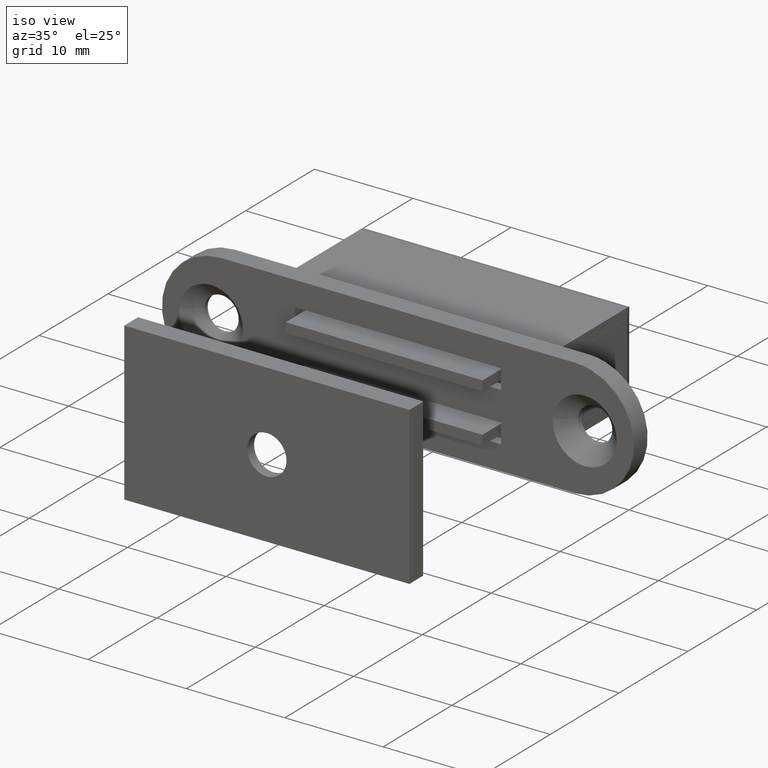
[diagram: clean part render]
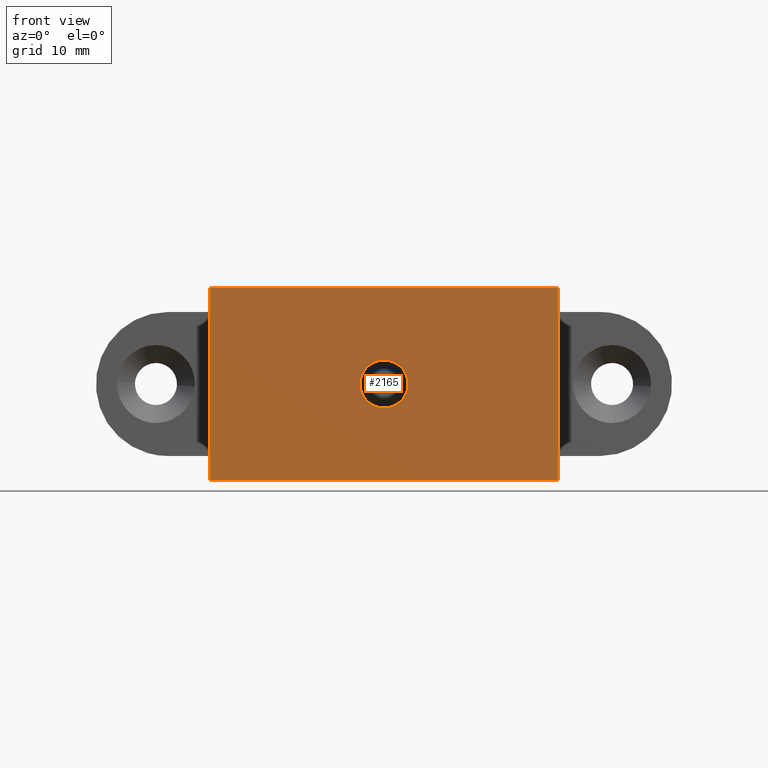
[diagram: tour spotlight — one face highlighted and labeled with its STEP entity id]
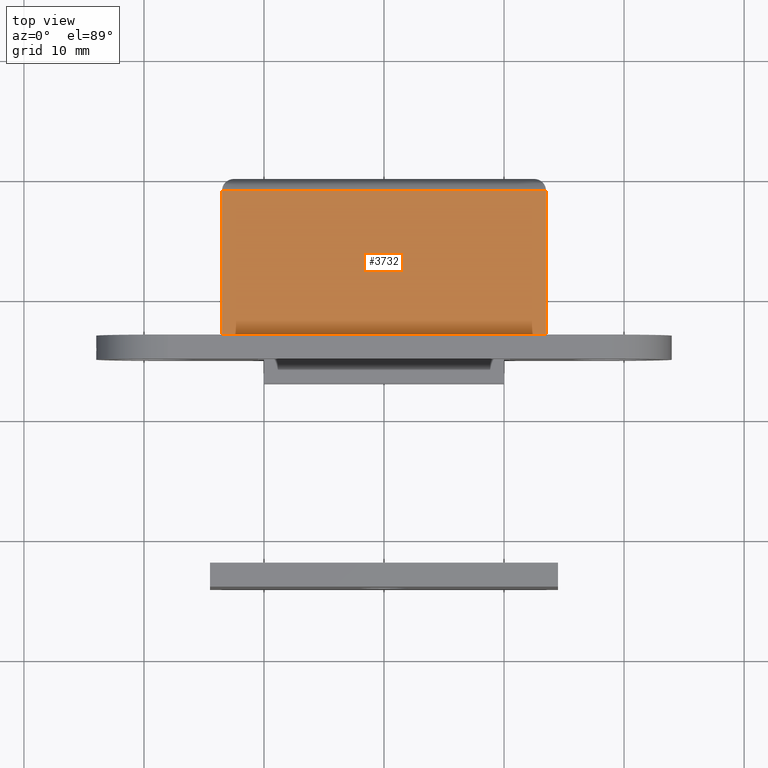
[diagram: tour spotlight — one face highlighted and labeled with its STEP entity id]
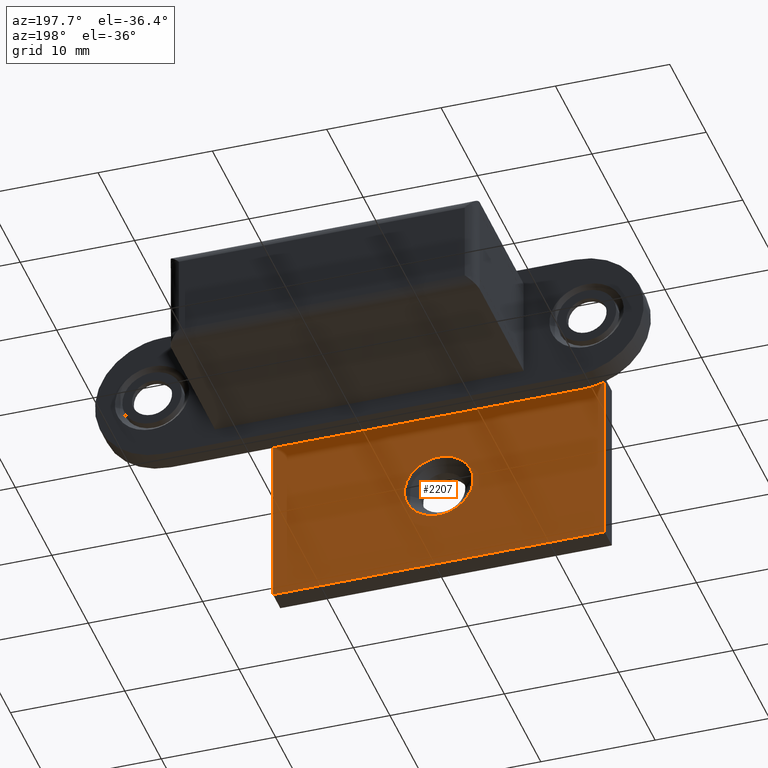
[diagram: tour spotlight — one face highlighted and labeled with its STEP entity id]
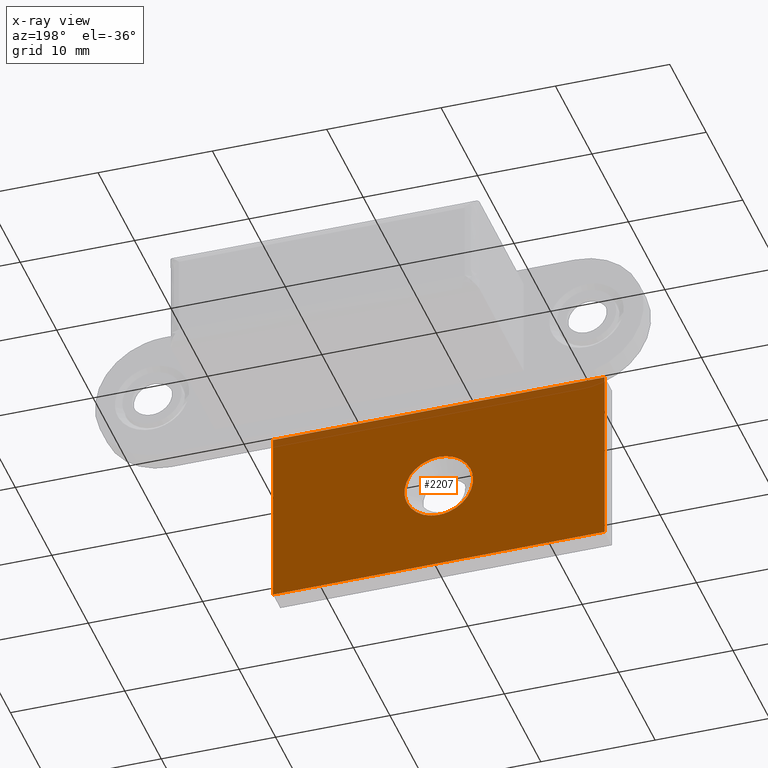
[diagram: x-ray of the same camera — body ghosted, this tour face saturated]
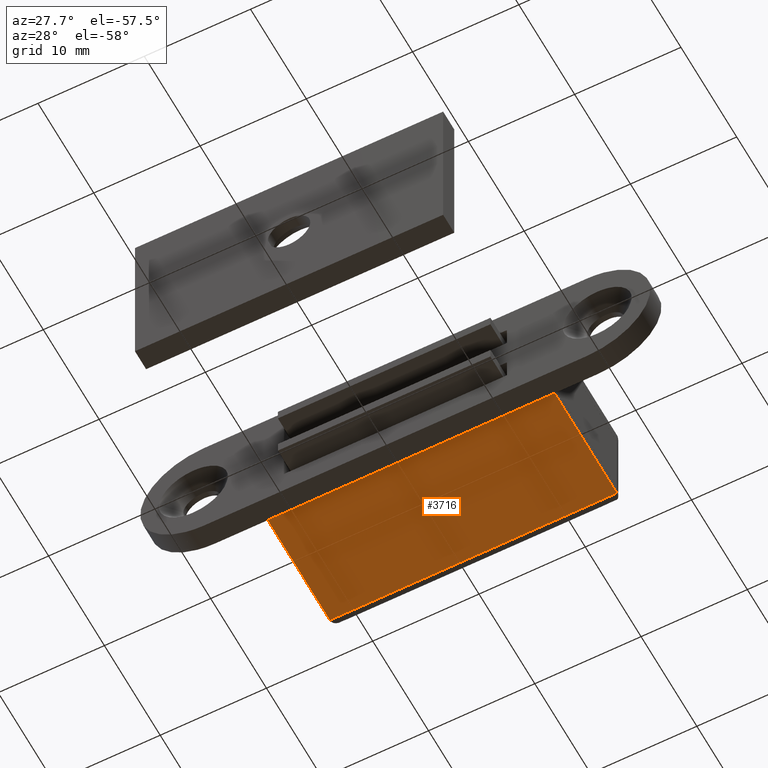
[diagram: tour spotlight — one face highlighted and labeled with its STEP entity id]
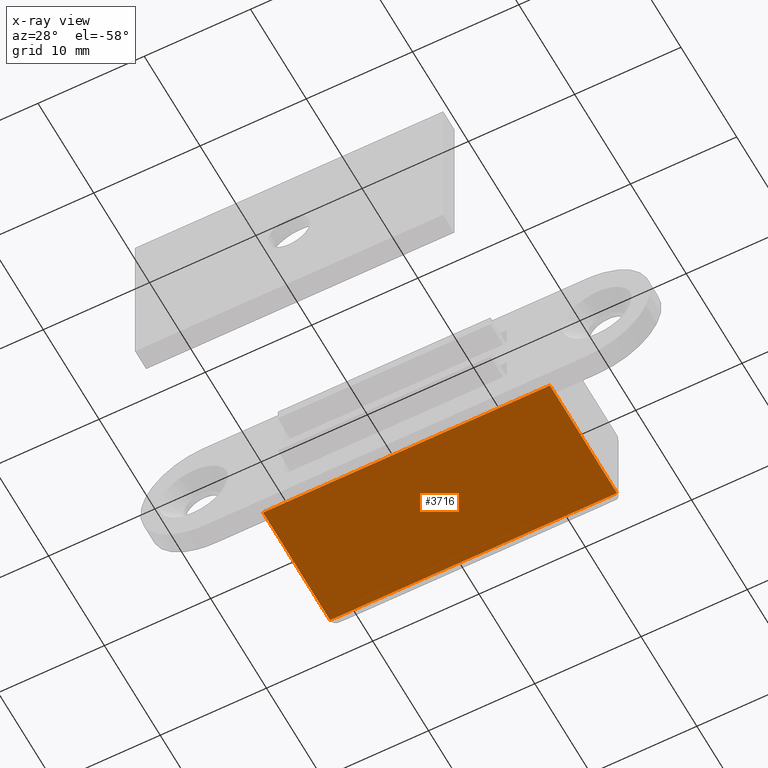
[diagram: x-ray of the same camera — body ghosted, this tour face saturated]
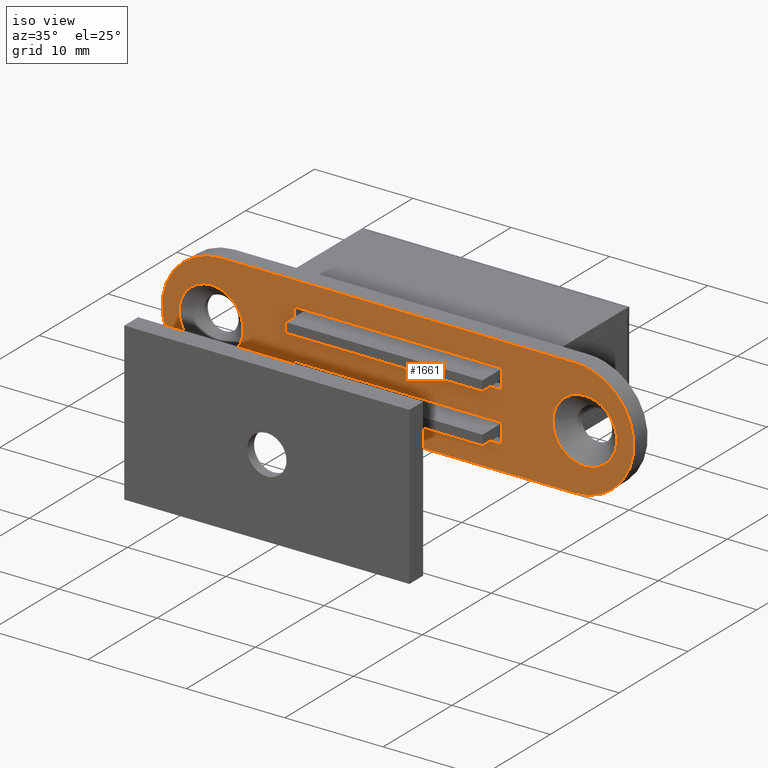
[diagram: tour spotlight — one face highlighted and labeled with its STEP entity id]
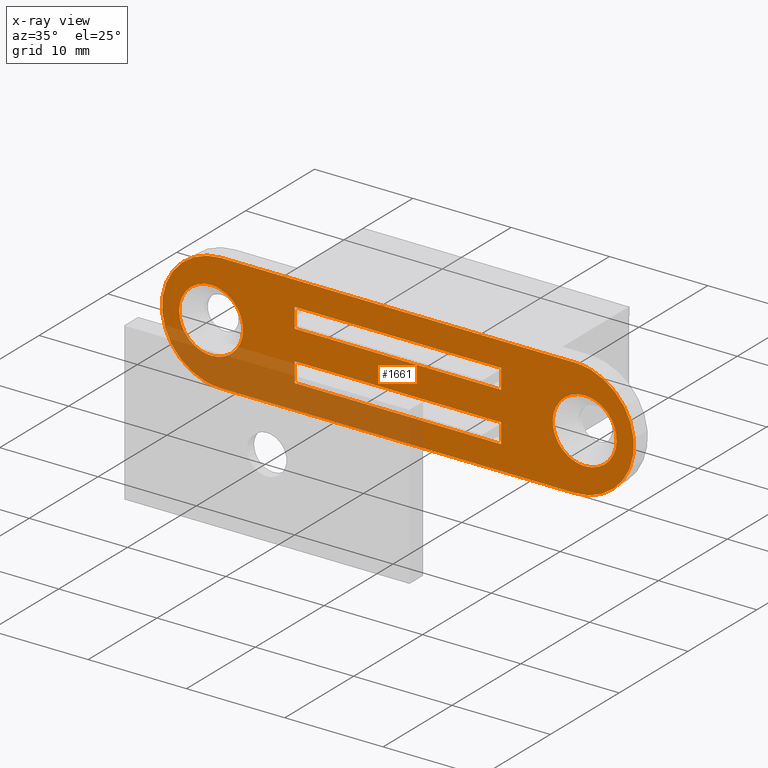
[diagram: x-ray of the same camera — body ghosted, this tour face saturated]
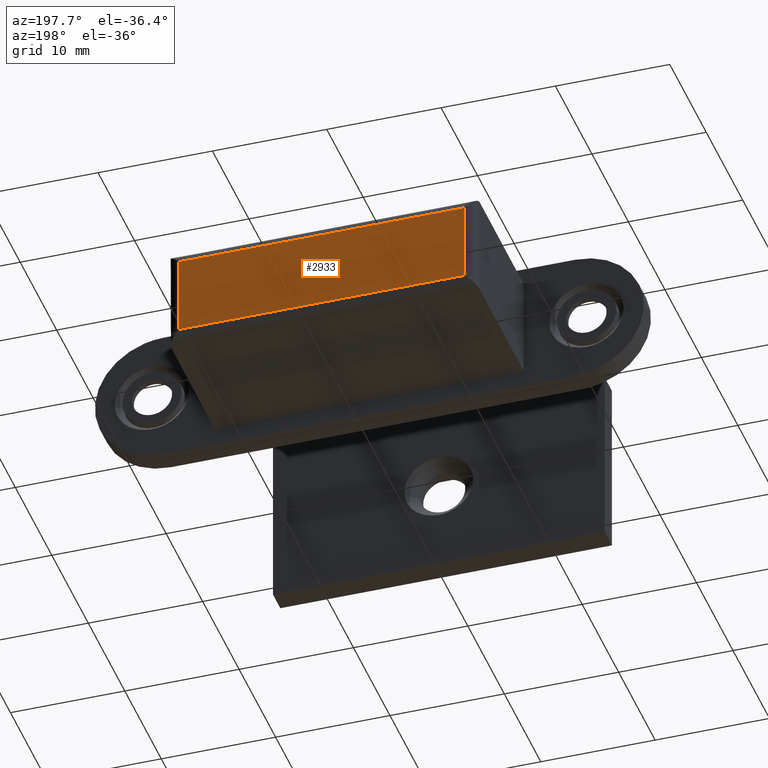
[diagram: tour spotlight — one face highlighted and labeled with its STEP entity id]
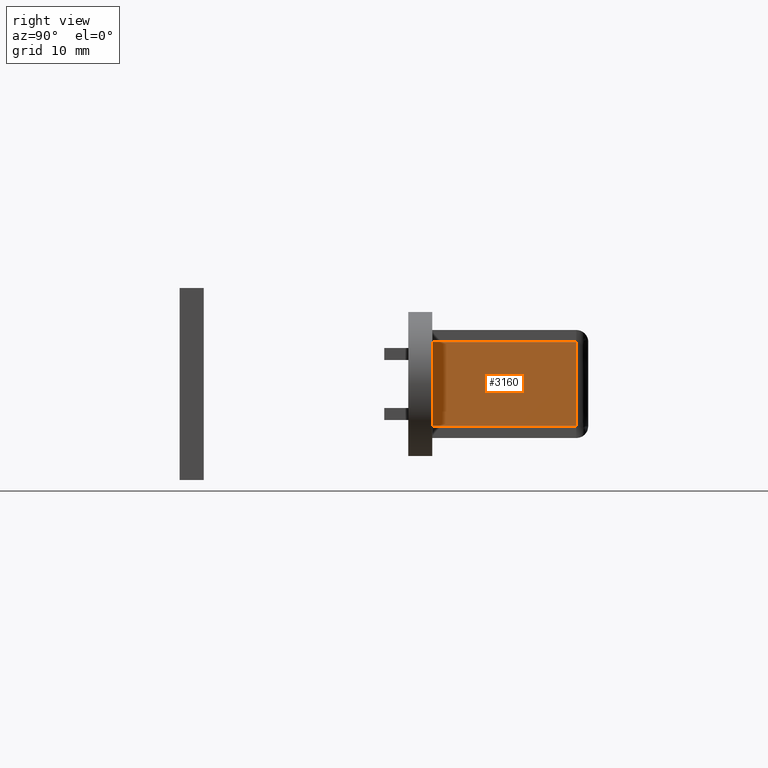
[diagram: tour spotlight — one face highlighted and labeled with its STEP entity id]
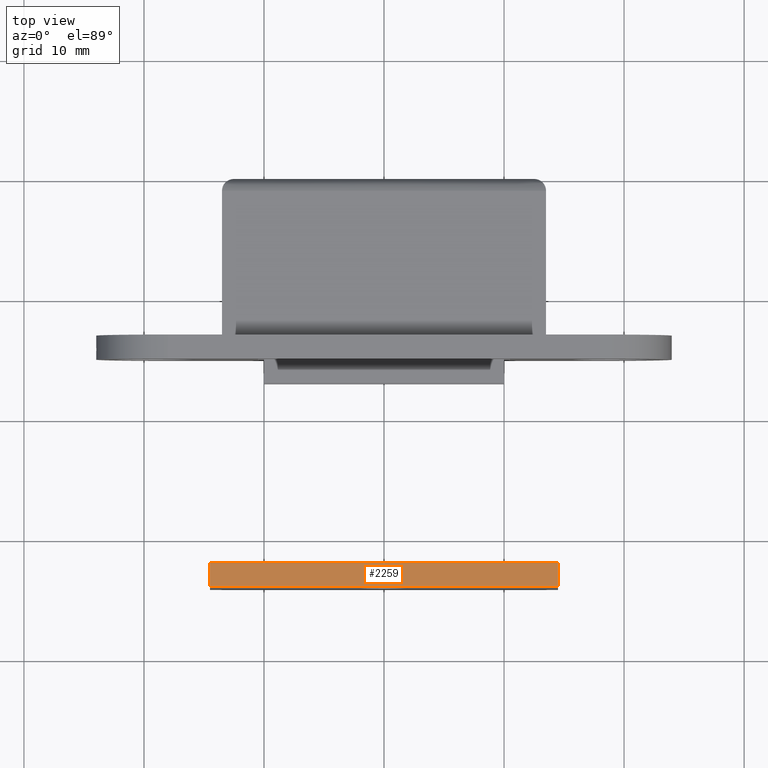
[diagram: tour spotlight — one face highlighted and labeled with its STEP entity id]
A machine part: a face-by-face anatomy tour. The part has 96 B-rep faces; the first image is the clean iso view, then the 8 largest visible faces are spotlighted one at a time (largest first), each with its STEP entity span.

Face 1 — front view, entity #2165. In plain terms, the highlighted face is a freeform B-spline surface patch.
Definition (entity closure, byte-faithful):
#2019=CARTESIAN_POINT('',(1.996269596839024,-34.044645065486712,-0.122097079147318));
#2020=VERTEX_POINT('',#2019);
#2026=CARTESIAN_POINT('',(0.0,-34.044645065486698,2.000000000000016));
#2027=VERTEX_POINT('',#2026);
#2028=CARTESIAN_POINT('',(1.996269596839024,-34.044645065486698,-0.122097079147318));
#2029=CARTESIAN_POINT('',(2.000000000000036,-34.044645065486698,-0.061105526636099));
#2030=CARTESIAN_POINT('',(2.000000000000035,-34.044645065486698,-1.967316E-014));
#2031=CARTESIAN_POINT('',(2.000000000000036,-34.044645065486705,2.000000000000016));
#2032=CARTESIAN_POINT('',(0.0,-34.044645065486698,2.000000000000016));
#2040=(BOUNDED_CURVE()B_SPLINE_CURVE(2,(#2028,#2029,#2030,#2031,#2032),.UNSPECIFIED.,.F.,.U.)B_SPLINE_CURVE_WITH_KNOTS((3,2,3),(0.239332962235262,0.250000000000000,0.500000000000000),.UNSPECIFIED.)CURVE()GEOMETRIC_REPRESENTATION_ITEM()RATIONAL_B_SPLINE_CURVE((0.976072041658830,0.987502787895525,1.0,0.707106781186547,1.0))REPRESENTATION_ITEM(''));
#2041=EDGE_CURVE('',#2020,#2027,#2040,.T.);
#2043=CARTESIAN_POINT('',(-1.996269596839024,-34.044645065486712,0.122097079147279));
#2044=VERTEX_POINT('',#2043);
#2045=CARTESIAN_POINT('',(0.0,-34.044645065486698,2.000000000000016));
#2046=CARTESIAN_POINT('',(-1.881412133738167,-34.044645065486705,2.000000000000016));
#2047=CARTESIAN_POINT('',(-1.996269596839024,-34.044645065486705,0.122097079147279));
#2055=(BOUNDED_CURVE()B_SPLINE_CURVE(2,(#2045,#2046,#2047),.UNSPECIFIED.,.F.,.U.)B_SPLINE_CURVE_WITH_KNOTS((3,3),(0.500000000000000,0.739332962235262),.UNSPECIFIED.)CURVE()GEOMETRIC_REPRESENTATION_ITEM()RATIONAL_B_SPLINE_CURVE((1.0,0.719603993291022,0.976072041658830))REPRESENTATION_ITEM(''));
#2056=EDGE_CURVE('',#2027,#2044,#2055,.T.);
#2089=CARTESIAN_POINT('',(0.0,-34.044645065486698,-2.000000000000055));
#2090=VERTEX_POINT('',#2089);
#2091=CARTESIAN_POINT('',(-1.996269596839024,-34.044645065486705,0.122097079147279));
#2092=CARTESIAN_POINT('',(-2.000000000000036,-34.044645065486698,0.061105526636059));
#2093=CARTESIAN_POINT('',(-2.000000000000035,-34.044645065486698,-1.967316E-014));
#2094=CARTESIAN_POINT('',(-2.000000000000036,-34.044645065486705,-2.000000000000055));
#2095=CARTESIAN_POINT('',(0.0,-34.044645065486698,-2.000000000000055));
#2103=(BOUNDED_CURVE()B_SPLINE_CURVE(2,(#2091,#2092,#2093,#2094,#2095),.UNSPECIFIED.,.F.,.U.)B_SPLINE_CURVE_WITH_KNOTS((3,2,3),(0.739332962235262,0.750000000000000,1.0),.UNSPECIFIED.)CURVE()GEOMETRIC_REPRESENTATION_ITEM()RATIONAL_B_SPLINE_CURVE((0.976072041658830,0.987502787895525,1.0,0.707106781186547,1.0))REPRESENTATION_ITEM(''));
#2104=EDGE_CURVE('',#2044,#2090,#2103,.T.);
#2106=CARTESIAN_POINT('',(0.0,-34.044645065486698,-2.000000000000055));
#2107=CARTESIAN_POINT('',(1.881412133738168,-34.044645065486705,-2.000000000000054));
#2108=CARTESIAN_POINT('',(1.996269596839024,-34.044645065486698,-0.122097079147318));
#2116=(BOUNDED_CURVE()B_SPLINE_CURVE(2,(#2106,#2107,#2108),.UNSPECIFIED.,.F.,.U.)B_SPLINE_CURVE_WITH_KNOTS((3,3),(0.0,0.239332962235262),.UNSPECIFIED.)CURVE()GEOMETRIC_REPRESENTATION_ITEM()RATIONAL_B_SPLINE_CURVE((1.0,0.719603993291022,0.976072041658830))REPRESENTATION_ITEM(''));
#2117=EDGE_CURVE('',#2090,#2020,#2116,.T.);
#2124=CARTESIAN_POINT('',(-15.948549943792379,-34.044645065486648,8.799199968988896));
#2125=CARTESIAN_POINT('',(15.948550721632991,-34.044645065486648,8.799199968988896));
#2126=CARTESIAN_POINT('',(-15.948549943792379,-34.044645065486648,-8.799200398142338));
#2127=CARTESIAN_POINT('',(15.948550721632991,-34.044645065486648,-8.799200398142338));
#2128=B_SPLINE_SURFACE_WITH_KNOTS('',1,1,((#2124,#2126),(#2125,#2127)),.UNSPECIFIED.,.F.,.F.,.U.,(2,2),(2,2),(0.0,31.897100665425370),(0.0,17.598400367131230),.UNSPECIFIED.);
#2129=CARTESIAN_POINT('',(-14.500000000000000,-34.044645065486648,-8.0));
#2130=VERTEX_POINT('',#2129);
#2131=CARTESIAN_POINT('',(-14.500000000000000,-34.044645065486648,8.0));
#2132=VERTEX_POINT('',#2131);
#2133=CARTESIAN_POINT('',(-14.500000000000000,-34.044645065486648,-8.0));
#2134=CARTESIAN_POINT('',(-14.500000000000000,-34.044645065486648,8.0));
#2135=QUASI_UNIFORM_CURVE('',1,(#2133,#2134),.UNSPECIFIED.,.F.,.U.);
#2136=EDGE_CURVE('',#2130,#2132,#2135,.T.);
#2137=ORIENTED_EDGE('',*,*,#2136,.F.);
#2138=CARTESIAN_POINT('',(14.500000000000000,-34.044645065486648,-8.0));
#2139=VERTEX_POINT('',#2138);
#2140=CARTESIAN_POINT('',(14.500000000000000,-34.044645065486648,-8.0));
#2141=CARTESIAN_POINT('',(-14.500000000000000,-34.044645065486648,-8.0));
#2142=QUASI_UNIFORM_CURVE('',1,(#2140,#2141),.UNSPECIFIED.,.F.,.U.);
#2143=EDGE_CURVE('',#2139,#2130,#2142,.T.);
#2144=ORIENTED_EDGE('',*,*,#2143,.F.);
#2145=CARTESIAN_POINT('',(14.500000000000000,-34.044645065486648,8.0));
#2146=VERTEX_POINT('',#2145);
#2147=CARTESIAN_POINT('',(14.500000000000000,-34.044645065486648,8.0));
#2148=CARTESIAN_POINT('',(14.500000000000000,-34.044645065486648,-8.0));
#2149=QUASI_UNIFORM_CURVE('',1,(#2147,#2148),.UNSPECIFIED.,.F.,.U.);
#2150=EDGE_CURVE('',#2146,#2139,#2149,.T.);
#2151=ORIENTED_EDGE('',*,*,#2150,.F.);
#2152=CARTESIAN_POINT('',(-14.500000000000000,-34.044645065486648,8.0));
#2153=CARTESIAN_POINT('',(14.500000000000000,-34.044645065486648,8.0));
#2154=QUASI_UNIFORM_CURVE('',1,(#2152,#2153),.UNSPECIFIED.,.F.,.U.);
#2155=EDGE_CURVE('',#2132,#2146,#2154,.T.);
#2156=ORIENTED_EDGE('',*,*,#2155,.F.);
#2157=EDGE_LOOP('',(#2137,#2144,#2151,#2156));
#2158=FACE_OUTER_BOUND('',#2157,.T.);
#2159=ORIENTED_EDGE('',*,*,#2056,.F.);
#2160=ORIENTED_EDGE('',*,*,#2041,.F.);
#2161=ORIENTED_EDGE('',*,*,#2117,.F.);
#2162=ORIENTED_EDGE('',*,*,#2104,.F.);
#2163=EDGE_LOOP('',(#2159,#2160,#2161,#2162));
#2164=FACE_BOUND('',#2163,.T.);
#2165=ADVANCED_FACE('',(#2158,#2164),#2128,.F.);

Face 2 — top view, entity #3732. In plain terms, the highlighted face is a freeform B-spline surface patch.
Definition (entity closure, byte-faithful):
#3094=CARTESIAN_POINT('',(-13.500000000000000,-13.0,4.500000000000000));
#3095=VERTEX_POINT('',#3094);
#3096=CARTESIAN_POINT('',(-13.500000000000000,-1.0,4.500000000000000));
#3097=VERTEX_POINT('',#3096);
#3098=CARTESIAN_POINT('',(-13.500000000000000,-13.0,4.500000000000000));
#3099=CARTESIAN_POINT('',(-13.500000000000000,-1.0,4.500000000000000));
#3100=QUASI_UNIFORM_CURVE('',1,(#3098,#3099),.UNSPECIFIED.,.F.,.U.);
#3101=EDGE_CURVE('',#3095,#3097,#3100,.T.);
#3279=CARTESIAN_POINT('',(13.499995999999999,-1.0,4.500000000000000));
#3280=VERTEX_POINT('',#3279);
#3296=CARTESIAN_POINT('',(13.499995999999999,-1.0,4.500000000000000));
#3297=CARTESIAN_POINT('',(-13.500000000000000,-1.0,4.500000000000000));
#3298=QUASI_UNIFORM_CURVE('',1,(#3296,#3297),.UNSPECIFIED.,.F.,.U.);
#3299=EDGE_CURVE('',#3280,#3097,#3298,.T.);
#3680=CARTESIAN_POINT('',(13.499995999999960,-13.0,4.500000000000000));
#3681=VERTEX_POINT('',#3680);
#3682=CARTESIAN_POINT('',(13.499995999999960,-13.0,4.500000000000000));
#3683=CARTESIAN_POINT('',(13.499995999999999,-1.0,4.500000000000000));
#3684=QUASI_UNIFORM_CURVE('',1,(#3682,#3683),.UNSPECIFIED.,.F.,.U.);
#3685=EDGE_CURVE('',#3681,#3280,#3684,.T.);
#3717=CARTESIAN_POINT('',(-14.848649747868770,-0.400600023258329,4.500000000000000));
#3718=CARTESIAN_POINT('',(-14.848649747868770,-13.599400298606760,4.500000000000000));
#3719=CARTESIAN_POINT('',(14.848646472065100,-0.400600023258329,4.500000000000000));
#3720=CARTESIAN_POINT('',(14.848646472065100,-13.599400298606760,4.500000000000000));
#3721=B_SPLINE_SURFACE_WITH_KNOTS('',1,1,((#3717,#3719),(#3718,#3720)),.UNSPECIFIED.,.F.,.F.,.U.,(2,2),(2,2),(0.0,13.198800275348431),(0.0,29.697296219933872),.UNSPECIFIED.);
#3722=ORIENTED_EDGE('',*,*,#3685,.T.);
#3723=ORIENTED_EDGE('',*,*,#3299,.T.);
#3724=ORIENTED_EDGE('',*,*,#3101,.F.);
#3725=CARTESIAN_POINT('',(13.499995999999960,-13.0,4.500000000000000));
#3726=CARTESIAN_POINT('',(-13.500000000000000,-13.0,4.500000000000000));
#3727=QUASI_UNIFORM_CURVE('',1,(#3725,#3726),.UNSPECIFIED.,.F.,.U.);
#3728=EDGE_CURVE('',#3681,#3095,#3727,.T.);
#3729=ORIENTED_EDGE('',*,*,#3728,.F.);
#3730=EDGE_LOOP('',(#3722,#3723,#3724,#3729));
#3731=FACE_OUTER_BOUND('',#3730,.T.);
#3732=ADVANCED_FACE('',(#3731),#3721,.T.);

Face 3 — auxiliary view, entity #2207. An x-ray twin of the same camera follows (body ghosted, this face saturated) — the face is partly hidden behind the body. In plain terms, the highlighted face is a freeform B-spline surface patch.
Definition (entity closure, byte-faithful):
#1823=CARTESIAN_POINT('',(2.990752001200863,-32.044645065483017,-0.235377287212060));
#1824=VERTEX_POINT('',#1823);
#1830=CARTESIAN_POINT('',(0.0,-32.044645065486698,-3.000000000000055));
#1831=VERTEX_POINT('',#1830);
#1832=CARTESIAN_POINT('',(0.0,-32.044645065486698,-3.000000000000055));
#1833=CARTESIAN_POINT('',(2.773171474950244,-32.044645065484858,-3.000000000000197));
#1834=CARTESIAN_POINT('',(2.990752001200863,-32.044645065483024,-0.235377287212060));
#1842=(BOUNDED_CURVE()B_SPLINE_CURVE(2,(#1832,#1833,#1834),.UNSPECIFIED.,.F.,.U.)B_SPLINE_CURVE_WITH_KNOTS((3,3),(0.0,0.236331300631150),.UNSPECIFIED.)CURVE()GEOMETRIC_REPRESENTATION_ITEM()RATIONAL_B_SPLINE_CURVE((1.0,0.723120658607091,0.969723356168440))REPRESENTATION_ITEM(''));
#1843=EDGE_CURVE('',#1831,#1824,#1842,.T.);
#1845=CARTESIAN_POINT('',(-2.990752001200863,-32.044645065483017,0.235377287212021));
#1846=VERTEX_POINT('',#1845);
#1847=CARTESIAN_POINT('',(-2.990752001200863,-32.044645065483024,0.235377287212021));
#1848=CARTESIAN_POINT('',(-3.000000000003633,-32.044645065483088,0.117870321037447));
#1849=CARTESIAN_POINT('',(-3.000000000003561,-32.044645065483166,2.583660E-013));
#1850=CARTESIAN_POINT('',(-3.000000000001729,-32.044645065485000,-2.999999999999920));
#1851=CARTESIAN_POINT('',(0.0,-32.044645065486698,-3.000000000000055));
#1859=(BOUNDED_CURVE()B_SPLINE_CURVE(2,(#1847,#1848,#1849,#1850,#1851),.UNSPECIFIED.,.F.,.U.)B_SPLINE_CURVE_WITH_KNOTS((3,2,3),(0.736331300631150,0.750000000000000,1.0),.UNSPECIFIED.)CURVE()GEOMETRIC_REPRESENTATION_ITEM()RATIONAL_B_SPLINE_CURVE((0.969723356168441,0.983986122579456,1.0,0.707106781186547,1.0))REPRESENTATION_ITEM(''));
#1860=EDGE_CURVE('',#1846,#1831,#1859,.T.);
#1966=CARTESIAN_POINT('',(0.0,-32.044645065486698,3.000000000000016));
#1967=VERTEX_POINT('',#1966);
#1968=CARTESIAN_POINT('',(0.0,-32.044645065486698,3.000000000000016));
#1969=CARTESIAN_POINT('',(-2.773171474950244,-32.044645065484858,3.000000000000159));
#1970=CARTESIAN_POINT('',(-2.990752001200863,-32.044645065483024,0.235377287212021));
#1978=(BOUNDED_CURVE()B_SPLINE_CURVE(2,(#1968,#1969,#1970),.UNSPECIFIED.,.F.,.U.)B_SPLINE_CURVE_WITH_KNOTS((3,3),(0.500000000000000,0.736331300631150),.UNSPECIFIED.)CURVE()GEOMETRIC_REPRESENTATION_ITEM()RATIONAL_B_SPLINE_CURVE((1.0,0.723120658607091,0.969723356168441))REPRESENTATION_ITEM(''));
#1979=EDGE_CURVE('',#1967,#1846,#1978,.T.);
#1981=CARTESIAN_POINT('',(2.990752001200863,-32.044645065483024,-0.235377287212060));
#1982=CARTESIAN_POINT('',(3.000000000003633,-32.044645065483095,-0.117870321037486));
#1983=CARTESIAN_POINT('',(3.000000000003561,-32.044645065483166,-2.968043E-013));
#1984=CARTESIAN_POINT('',(3.000000000001729,-32.044645065485000,2.999999999999882));
#1985=CARTESIAN_POINT('',(0.0,-32.044645065486698,3.000000000000016));
#1993=(BOUNDED_CURVE()B_SPLINE_CURVE(2,(#1981,#1982,#1983,#1984,#1985),.UNSPECIFIED.,.F.,.U.)B_SPLINE_CURVE_WITH_KNOTS((3,2,3),(0.236331300631150,0.250000000000000,0.500000000000000),.UNSPECIFIED.)CURVE()GEOMETRIC_REPRESENTATION_ITEM()RATIONAL_B_SPLINE_CURVE((0.969723356168440,0.983986122579456,1.0,0.707106781186547,1.0))REPRESENTATION_ITEM(''));
#1994=EDGE_CURVE('',#1824,#1967,#1993,.T.);
#2166=CARTESIAN_POINT('',(-15.948549943792379,-32.044645065486698,8.799199968988896));
#2167=CARTESIAN_POINT('',(15.948550721632991,-32.044645065486698,8.799199968988896));
#2168=CARTESIAN_POINT('',(-15.948549943792379,-32.044645065486698,-8.799200398142338));
#2169=CARTESIAN_POINT('',(15.948550721632991,-32.044645065486698,-8.799200398142338));
#2170=B_SPLINE_SURFACE_WITH_KNOTS('',1,1,((#2166,#2168),(#2167,#2169)),.UNSPECIFIED.,.F.,.F.,.U.,(2,2),(2,2),(0.0,31.897100665425370),(0.0,17.598400367131230),.UNSPECIFIED.);
#2171=CARTESIAN_POINT('',(-14.500000000000000,-32.044645065486648,-8.0));
#2172=VERTEX_POINT('',#2171);
#2173=CARTESIAN_POINT('',(-14.500000000000000,-32.044645065486648,8.0));
#2174=VERTEX_POINT('',#2173);
#2175=CARTESIAN_POINT('',(-14.500000000000000,-32.044645065486648,-8.0));
#2176=CARTESIAN_POINT('',(-14.500000000000000,-32.044645065486648,8.0));
#2177=QUASI_UNIFORM_CURVE('',1,(#2175,#2176),.UNSPECIFIED.,.F.,.U.);
#2178=EDGE_CURVE('',#2172,#2174,#2177,.T.);
#2179=ORIENTED_EDGE('',*,*,#2178,.T.);
#2180=CARTESIAN_POINT('',(14.500000000000000,-32.044645065486648,8.0));
#2181=VERTEX_POINT('',#2180);
#2182=CARTESIAN_POINT('',(-14.500000000000000,-32.044645065486648,8.0));
#2183=CARTESIAN_POINT('',(14.500000000000000,-32.044645065486648,8.0));
#2184=QUASI_UNIFORM_CURVE('',1,(#2182,#2183),.UNSPECIFIED.,.F.,.U.);
#2185=EDGE_CURVE('',#2174,#2181,#2184,.T.);
#2186=ORIENTED_EDGE('',*,*,#2185,.T.);
#2187=CARTESIAN_POINT('',(14.500000000000000,-32.044645065486648,-8.0));
#2188=VERTEX_POINT('',#2187);
#2189=CARTESIAN_POINT('',(14.500000000000000,-32.044645065486648,8.0));
#2190=CARTESIAN_POINT('',(14.500000000000000,-32.044645065486648,-8.0));
#2191=QUASI_UNIFORM_CURVE('',1,(#2189,#2190),.UNSPECIFIED.,.F.,.U.);
#2192=EDGE_CURVE('',#2181,#2188,#2191,.T.);
#2193=ORIENTED_EDGE('',*,*,#2192,.T.);
#2194=CARTESIAN_POINT('',(14.500000000000000,-32.044645065486648,-8.0));
#2195=CARTESIAN_POINT('',(-14.500000000000000,-32.044645065486648,-8.0));
#2196=QUASI_UNIFORM_CURVE('',1,(#2194,#2195),.UNSPECIFIED.,.F.,.U.);
#2197=EDGE_CURVE('',#2188,#2172,#2196,.T.);
#2198=ORIENTED_EDGE('',*,*,#2197,.T.);
#2199=EDGE_LOOP('',(#2179,#2186,#2193,#2198));
#2200=FACE_OUTER_BOUND('',#2199,.T.);
#2201=ORIENTED_EDGE('',*,*,#1979,.T.);
#2202=ORIENTED_EDGE('',*,*,#1860,.T.);
#2203=ORIENTED_EDGE('',*,*,#1843,.T.);
#2204=ORIENTED_EDGE('',*,*,#1994,.T.);
#2205=EDGE_LOOP('',(#2201,#2202,#2203,#2204));
#2206=FACE_BOUND('',#2205,.T.);
#2207=ADVANCED_FACE('',(#2200,#2206),#2170,.T.);

Face 4 — auxiliary view, entity #3716. An x-ray twin of the same camera follows (body ghosted, this face saturated) — the face is partly hidden behind the body. In plain terms, the highlighted face is a freeform B-spline surface patch.
Definition (entity closure, byte-faithful):
#3189=CARTESIAN_POINT('',(-13.500000000000000,-1.0,-4.500000000000000));
#3190=VERTEX_POINT('',#3189);
#3240=CARTESIAN_POINT('',(13.499995999999999,-1.0,-4.500000000000000));
#3241=VERTEX_POINT('',#3240);
#3255=CARTESIAN_POINT('',(-13.500000000000000,-1.0,-4.500000000000000));
#3256=CARTESIAN_POINT('',(13.499995999999999,-1.0,-4.500000000000000));
#3257=QUASI_UNIFORM_CURVE('',1,(#3255,#3256),.UNSPECIFIED.,.F.,.U.);
#3258=EDGE_CURVE('',#3190,#3241,#3257,.T.);
#3658=CARTESIAN_POINT('',(-13.500000000000000,-13.0,-4.500000000000000));
#3659=VERTEX_POINT('',#3658);
#3660=CARTESIAN_POINT('',(-13.500000000000000,-1.0,-4.500000000000000));
#3661=CARTESIAN_POINT('',(-13.500000000000000,-13.0,-4.500000000000000));
#3662=QUASI_UNIFORM_CURVE('',1,(#3660,#3661),.UNSPECIFIED.,.F.,.U.);
#3663=EDGE_CURVE('',#3190,#3659,#3662,.T.);
#3695=CARTESIAN_POINT('',(-14.848649747868770,-13.599399976741671,-4.500000000000000));
#3696=CARTESIAN_POINT('',(-14.848649747868770,-0.400599701393247,-4.500000000000000));
#3697=CARTESIAN_POINT('',(14.848646472065100,-13.599399976741671,-4.500000000000000));
#3698=CARTESIAN_POINT('',(14.848646472065100,-0.400599701393247,-4.500000000000000));
#3699=B_SPLINE_SURFACE_WITH_KNOTS('',1,1,((#3695,#3697),(#3696,#3698)),.UNSPECIFIED.,.F.,.F.,.U.,(2,2),(2,2),(0.0,13.198800275348431),(0.0,29.697296219933872),.UNSPECIFIED.);
#3700=ORIENTED_EDGE('',*,*,#3663,.F.);
#3701=ORIENTED_EDGE('',*,*,#3258,.T.);
#3702=CARTESIAN_POINT('',(13.499995999999960,-13.0,-4.500000000000000));
#3703=VERTEX_POINT('',#3702);
#3704=CARTESIAN_POINT('',(13.499995999999999,-1.0,-4.500000000000000));
#3705=CARTESIAN_POINT('',(13.499995999999960,-13.0,-4.500000000000000));
#3706=QUASI_UNIFORM_CURVE('',1,(#3704,#3705),.UNSPECIFIED.,.F.,.U.);
#3707=EDGE_CURVE('',#3241,#3703,#3706,.T.);
#3708=ORIENTED_EDGE('',*,*,#3707,.T.);
#3709=CARTESIAN_POINT('',(13.499995999999960,-13.0,-4.500000000000000));
#3710=CARTESIAN_POINT('',(-13.500000000000000,-13.0,-4.500000000000000));
#3711=QUASI_UNIFORM_CURVE('',1,(#3709,#3710),.UNSPECIFIED.,.F.,.U.);
#3712=EDGE_CURVE('',#3703,#3659,#3711,.T.);
#3713=ORIENTED_EDGE('',*,*,#3712,.T.);
#3714=EDGE_LOOP('',(#3700,#3701,#3708,#3713));
#3715=FACE_OUTER_BOUND('',#3714,.T.);
#3716=ADVANCED_FACE('',(#3715),#3699,.T.);

Face 5 — iso view, entity #1661. An x-ray twin of the same camera follows (body ghosted, this face saturated) — the face is partly hidden behind the body. In plain terms, the highlighted face is a freeform B-spline surface patch.
Definition (entity closure, byte-faithful):
#680=CARTESIAN_POINT('',(-15.756061950678911,-14.999999940406580,-0.198407506137247));
#681=VERTEX_POINT('',#680);
#687=CARTESIAN_POINT('',(-18.999995999999999,-14.999999940395361,3.249995946884155));
#688=VERTEX_POINT('',#687);
#689=CARTESIAN_POINT('',(-15.756061950678911,-14.999999940406576,-0.198407506137246));
#690=CARTESIAN_POINT('',(-15.750000053104813,-14.999999940406417,-0.099296356929859));
#691=CARTESIAN_POINT('',(-15.750000053104980,-14.999999940406250,-6.647800E-013));
#692=CARTESIAN_POINT('',(-15.750000053110588,-14.999999940400638,3.249995946883833));
#693=CARTESIAN_POINT('',(-18.999995999999999,-14.999999940395361,3.249995946884155));
#701=(BOUNDED_CURVE()B_SPLINE_CURVE(2,(#689,#690,#691,#692,#693),.UNSPECIFIED.,.F.,.U.)B_SPLINE_CURVE_WITH_KNOTS((3,2,3),(0.239332962237443,0.250000000000000,0.500000000000000),.UNSPECIFIED.)CURVE()GEOMETRIC_REPRESENTATION_ITEM()RATIONAL_B_SPLINE_CURVE((0.976072041663503,0.987502787898080,1.0,0.707106781186547,1.0))REPRESENTATION_ITEM(''));
#702=EDGE_CURVE('',#681,#688,#701,.T.);
#704=CARTESIAN_POINT('',(-22.243930049321090,-14.999999940406580,0.198407506137246));
#705=VERTEX_POINT('',#704);
#706=CARTESIAN_POINT('',(-18.999995999999999,-14.999999940395361,3.249995946884155));
#707=CARTESIAN_POINT('',(-22.057286904578110,-14.999999940400965,3.249995946884496));
#708=CARTESIAN_POINT('',(-22.243930049321097,-14.999999940406580,0.198407506137246));
#716=(BOUNDED_CURVE()B_SPLINE_CURVE(2,(#706,#707,#708),.UNSPECIFIED.,.F.,.U.)B_SPLINE_CURVE_WITH_KNOTS((3,3),(0.500000000000000,0.739332962237443),.UNSPECIFIED.)CURVE()GEOMETRIC_REPRESENTATION_ITEM()RATIONAL_B_SPLINE_CURVE((1.0,0.719603993288468,0.976072041663503))REPRESENTATION_ITEM(''));
#717=EDGE_CURVE('',#688,#705,#716,.T.);
#749=CARTESIAN_POINT('',(-18.999995999999999,-14.999999940395361,-3.249995946884155));
#750=VERTEX_POINT('',#749);
#751=CARTESIAN_POINT('',(-22.243930049321097,-14.999999940406580,0.198407506137246));
#752=CARTESIAN_POINT('',(-22.249991946895193,-14.999999940406418,0.099296356929858));
#753=CARTESIAN_POINT('',(-22.249991946895019,-14.999999940406241,6.637027E-013));
#754=CARTESIAN_POINT('',(-22.249991946889420,-14.999999940400638,-3.249995946883833));
#755=CARTESIAN_POINT('',(-18.999995999999999,-14.999999940395361,-3.249995946884155));
#763=(BOUNDED_CURVE()B_SPLINE_CURVE(2,(#751,#752,#753,#754,#755),.UNSPECIFIED.,.F.,.U.)B_SPLINE_CURVE_WITH_KNOTS((3,2,3),(0.739332962237443,0.750000000000000,1.0),.UNSPECIFIED.)CURVE()GEOMETRIC_REPRESENTATION_ITEM()RATIONAL_B_SPLINE_CURVE((0.976072041663503,0.987502787898080,1.0,0.707106781186547,1.0))REPRESENTATION_ITEM(''));
#764=EDGE_CURVE('',#705,#750,#763,.T.);
#766=CARTESIAN_POINT('',(-18.999995999999999,-14.999999940395361,-3.249995946884155));
#767=CARTESIAN_POINT('',(-15.942705095421891,-14.999999940400967,-3.249995946884497));
#768=CARTESIAN_POINT('',(-15.756061950678911,-14.999999940406576,-0.198407506137246));
#776=(BOUNDED_CURVE()B_SPLINE_CURVE(2,(#766,#767,#768),.UNSPECIFIED.,.F.,.U.)B_SPLINE_CURVE_WITH_KNOTS((3,3),(0.0,0.239332962237443),.UNSPECIFIED.)CURVE()GEOMETRIC_REPRESENTATION_ITEM()RATIONAL_B_SPLINE_CURVE((1.0,0.719603993288467,0.976072041663503))REPRESENTATION_ITEM(''));
#777=EDGE_CURVE('',#750,#681,#776,.T.);
#1046=CARTESIAN_POINT('',(22.243934049321091,-14.999999940406580,-0.198407506137247));
#1047=VERTEX_POINT('',#1046);
#1053=CARTESIAN_POINT('',(19.0,-14.999999940395361,3.249995946884155));
#1054=VERTEX_POINT('',#1053);
#1055=CARTESIAN_POINT('',(22.243934049321094,-14.999999940406576,-0.198407506137246));
#1056=CARTESIAN_POINT('',(22.249995946895190,-14.999999940406417,-0.099296356929859));
#1057=CARTESIAN_POINT('',(22.249995946895019,-14.999999940406250,-6.647800E-013));
#1058=CARTESIAN_POINT('',(22.249995946889428,-14.999999940400638,3.249995946883833));
#1059=CARTESIAN_POINT('',(19.0,-14.999999940395361,3.249995946884155));
#1067=(BOUNDED_CURVE()B_SPLINE_CURVE(2,(#1055,#1056,#1057,#1058,#1059),.UNSPECIFIED.,.F.,.U.)B_SPLINE_CURVE_WITH_KNOTS((3,2,3),(0.239332962237443,0.250000000000000,0.500000000000000),.UNSPECIFIED.)CURVE()GEOMETRIC_REPRESENTATION_ITEM()RATIONAL_B_SPLINE_CURVE((0.976072041663503,0.987502787898080,1.0,0.707106781186547,1.0))REPRESENTATION_ITEM(''));
#1068=EDGE_CURVE('',#1047,#1054,#1067,.T.);
#1070=CARTESIAN_POINT('',(15.756065950678909,-14.999999940406580,0.198407506137246));
#1071=VERTEX_POINT('',#1070);
#1072=CARTESIAN_POINT('',(19.0,-14.999999940395361,3.249995946884155));
#1073=CARTESIAN_POINT('',(15.942709095421897,-14.999999940400965,3.249995946884496));
#1074=CARTESIAN_POINT('',(15.756065950678908,-14.999999940406580,0.198407506137246));
#1082=(BOUNDED_CURVE()B_SPLINE_CURVE(2,(#1072,#1073,#1074),.UNSPECIFIED.,.F.,.U.)B_SPLINE_CURVE_WITH_KNOTS((3,3),(0.500000000000000,0.739332962237443),.UNSPECIFIED.)CURVE()GEOMETRIC_REPRESENTATION_ITEM()RATIONAL_B_SPLINE_CURVE((1.0,0.719603993288468,0.976072041663503))REPRESENTATION_ITEM(''));
#1083=EDGE_CURVE('',#1054,#1071,#1082,.T.);
#1115=CARTESIAN_POINT('',(19.0,-14.999999940395361,-3.249995946884155));
#1116=VERTEX_POINT('',#1115);
#1117=CARTESIAN_POINT('',(15.756065950678908,-14.999999940406580,0.198407506137246));
#1118=CARTESIAN_POINT('',(15.750004053104812,-14.999999940406418,0.099296356929858));
#1119=CARTESIAN_POINT('',(15.750004053104981,-14.999999940406241,6.637027E-013));
#1120=CARTESIAN_POINT('',(15.750004053110583,-14.999999940400638,-3.249995946883833));
#1121=CARTESIAN_POINT('',(19.0,-14.999999940395361,-3.249995946884155));
#1129=(BOUNDED_CURVE()B_SPLINE_CURVE(2,(#1117,#1118,#1119,#1120,#1121),.UNSPECIFIED.,.F.,.U.)B_SPLINE_CURVE_WITH_KNOTS((3,2,3),(0.739332962237443,0.750000000000000,1.0),.UNSPECIFIED.)CURVE()GEOMETRIC_REPRESENTATION_ITEM()RATIONAL_B_SPLINE_CURVE((0.976072041663503,0.987502787898080,1.0,0.707106781186547,1.0))REPRESENTATION_ITEM(''));
#1130=EDGE_CURVE('',#1071,#1116,#1129,.T.);
#1132=CARTESIAN_POINT('',(19.0,-14.999999940395361,-3.249995946884155));
#1133=CARTESIAN_POINT('',(22.057290904578107,-14.999999940400967,-3.249995946884497));
#1134=CARTESIAN_POINT('',(22.243934049321094,-14.999999940406576,-0.198407506137246));
#1142=(BOUNDED_CURVE()B_SPLINE_CURVE(2,(#1132,#1133,#1134),.UNSPECIFIED.,.F.,.U.)B_SPLINE_CURVE_WITH_KNOTS((3,3),(0.0,0.239332962237443),.UNSPECIFIED.)CURVE()GEOMETRIC_REPRESENTATION_ITEM()RATIONAL_B_SPLINE_CURVE((1.0,0.719603993288467,0.976072041663503))REPRESENTATION_ITEM(''));
#1143=EDGE_CURVE('',#1116,#1047,#1142,.T.);
#1276=CARTESIAN_POINT('',(-17.999999895280251,-15.0,-6.0));
#1277=VERTEX_POINT('',#1276);
#1278=CARTESIAN_POINT('',(17.999995999999999,-15.0,-6.0));
#1279=VERTEX_POINT('',#1278);
#1280=CARTESIAN_POINT('',(-17.999999895280251,-15.0,-6.0));
#1281=CARTESIAN_POINT('',(17.999995999999999,-15.0,-6.0));
#1282=QUASI_UNIFORM_CURVE('',1,(#1280,#1281),.UNSPECIFIED.,.F.,.U.);
#1283=EDGE_CURVE('',#1277,#1279,#1282,.T.);
#1312=CARTESIAN_POINT('',(10.500000000000000,-15.0,-3.500000000000000));
#1313=VERTEX_POINT('',#1312);
#1314=CARTESIAN_POINT('',(10.500000000000000,-15.0,-1.500000000000000));
#1315=VERTEX_POINT('',#1314);
#1316=CARTESIAN_POINT('',(10.500000000000000,-15.0,-3.500000000000000));
#1317=CARTESIAN_POINT('',(10.500000000000000,-15.0,-1.500000000000000));
#1318=QUASI_UNIFORM_CURVE('',1,(#1316,#1317),.UNSPECIFIED.,.F.,.U.);
#1319=EDGE_CURVE('',#1313,#1315,#1318,.T.);
#1361=CARTESIAN_POINT('',(-18.009797955705899,-15.0,5.999992000000000));
#1362=VERTEX_POINT('',#1361);
#1363=CARTESIAN_POINT('',(-18.009797955705899,-15.0,5.999992000000000));
#1364=CARTESIAN_POINT('',(-18.561764341377089,-15.000000000000011,5.999291271001738));
#1365=CARTESIAN_POINT('',(-19.370966573214421,-15.0,5.885242552994780));
#1366=CARTESIAN_POINT('',(-20.505735973787459,-15.000000000000030,5.481259887666925));
#1367=CARTESIAN_POINT('',(-21.282546321017779,-14.999999999999959,5.052324263097212));
#1368=CARTESIAN_POINT('',(-22.097294866082269,-15.000000000000041,4.418807632492299));
#1369=CARTESIAN_POINT('',(-22.795157165960500,-15.000000000000171,3.670440382303105));
#1370=CARTESIAN_POINT('',(-23.359224791444099,-14.999999999999609,2.758920045993010));
#1371=CARTESIAN_POINT('',(-23.722609305343600,-15.000000000000391,1.871333428092403));
#1372=CARTESIAN_POINT('',(-23.939943926530731,-14.999999999999600,1.000226585856818));
#1373=CARTESIAN_POINT('',(-24.016118850703350,-14.999999999999950,0.167006514544075));
#1374=CARTESIAN_POINT('',(-23.981718105394052,-15.000000000000160,-0.618422167165278));
#1375=CARTESIAN_POINT('',(-23.858193433413540,-14.999999999999700,-1.382671189871380));
#1376=CARTESIAN_POINT('',(-23.626838981578850,-15.000000000000091,-2.135212225389955));
#1377=CARTESIAN_POINT('',(-23.234912928771092,-14.999999999999970,-2.982746577242684));
#1378=CARTESIAN_POINT('',(-22.686730748885289,-15.000000000000030,-3.802281108610509));
#1379=CARTESIAN_POINT('',(-21.858204743178621,-14.999999999999909,-4.645519490290024));
#1380=CARTESIAN_POINT('',(-20.920189566069439,-15.000000000000270,-5.284437098531712));
#1381=CARTESIAN_POINT('',(-19.980919908134840,-14.999999999999551,-5.686755595943088));
#1382=CARTESIAN_POINT('',(-19.030265311766051,-15.000000000000940,-5.937179780356080));
#1383=CARTESIAN_POINT('',(-18.392490430645068,-14.999999999999050,-6.000054141068936));
#1384=CARTESIAN_POINT('',(-17.999999895280251,-15.0,-6.0));
#1385=B_SPLINE_CURVE_WITH_KNOTS('',3,(#1363,#1364,#1365,#1366,#1367,#1368,#1369,#1370,#1371,#1372,#1373,#1374,#1375,#1376,#1377,#1378,#1379,#1380,#1381,#1382,#1383,#1384),.UNSPECIFIED.,.F.,.U.,(4,1,1,1,1,1,1,1,1,1,1,1,1,1,1,1,1,1,1,4),(0.000000102349226,1.655815014275337,2.428557757982873,3.606044343681063,4.305186390572494,5.519475678261639,6.660175452374499,7.506493082220885,8.389602913539875,9.346321446829110,10.008623594256960,10.744556995793999,11.664460449689090,12.363610424740649,13.541094163749930,14.608195888768041,15.896074863565010,16.926391551970958,17.662327650135062,18.839787589607251),.UNSPECIFIED.);
#1386=EDGE_CURVE('',#1362,#1277,#1385,.T.);
#1429=CARTESIAN_POINT('',(18.009793955705899,-15.0,5.999992000000000));
#1430=VERTEX_POINT('',#1429);
#1431=CARTESIAN_POINT('',(18.009793955705899,-15.0,5.999992000000000));
#1432=CARTESIAN_POINT('',(-18.009797955705899,-15.0,5.999992000000000));
#1433=QUASI_UNIFORM_CURVE('',1,(#1431,#1432),.UNSPECIFIED.,.F.,.U.);
#1434=EDGE_CURVE('',#1430,#1362,#1433,.T.);
#1470=CARTESIAN_POINT('',(17.999995999999999,-15.0,-6.0));
#1471=CARTESIAN_POINT('',(18.331158682282190,-15.000000000000011,-6.000014240358727));
#1472=CARTESIAN_POINT('',(19.091623677619719,-14.999999999999920,-5.936925208282705));
#1473=CARTESIAN_POINT('',(20.041992235668289,-15.000000000000149,-5.670965191140366));
#1474=CARTESIAN_POINT('',(20.832759703809579,-14.999999999999829,-5.302997381559284));
#1475=CARTESIAN_POINT('',(21.515239814754299,-15.000000000000080,-4.888533853382110));
#1476=CARTESIAN_POINT('',(22.256084738064800,-15.000000000000259,-4.277217183423700));
#1477=CARTESIAN_POINT('',(22.944072594409761,-14.999999999999689,-3.455191869077793));
#1478=CARTESIAN_POINT('',(23.493533199793649,-15.000000000000080,-2.493385472955543));
#1479=CARTESIAN_POINT('',(23.836947858457510,-15.000000000000149,-1.516733885300389));
#1480=CARTESIAN_POINT('',(23.990924591499670,-14.999999999999540,-0.582124650855105));
#1481=CARTESIAN_POINT('',(24.012104475339189,-15.000000000001180,0.253215154506520));
#1482=CARTESIAN_POINT('',(23.916711183584191,-14.999999999999339,1.145731924935947));
#1483=CARTESIAN_POINT('',(23.648279633049491,-15.000000000000190,2.119445581952790));
#1484=CARTESIAN_POINT('',(23.182329962993371,-15.000000000000210,3.084154414574544));
#1485=CARTESIAN_POINT('',(22.649500744973668,-15.000000000000369,3.823074696190967));
#1486=CARTESIAN_POINT('',(22.021563651128510,-14.999999999999870,4.480173293841873));
#1487=CARTESIAN_POINT('',(21.334670365604850,-15.000000000000020,5.021072329582148));
#1488=CARTESIAN_POINT('',(20.450113297387979,-14.999999999999959,5.505955382702260));
#1489=CARTESIAN_POINT('',(19.358749678025859,-15.000000000000201,5.890751496588606));
#1490=CARTESIAN_POINT('',(18.512681898915350,-14.999999999999559,5.999299715809912));
#1491=CARTESIAN_POINT('',(18.009793955705899,-15.0,5.999992000000000));
#1492=B_SPLINE_CURVE_WITH_KNOTS('',3,(#1470,#1471,#1472,#1473,#1474,#1475,#1476,#1477,#1478,#1479,#1480,#1481,#1482,#1483,#1484,#1485,#1486,#1487,#1488,#1489,#1490,#1491),.UNSPECIFIED.,.F.,.U.,(4,1,1,1,1,1,1,1,1,1,1,1,1,1,1,1,1,1,1,4),(0.000000102261588,0.993494156851945,2.281373765471511,2.943705251361775,3.606044323560333,4.673151798009135,5.813847171621566,6.807359121419523,7.984846823184279,8.904761812479643,9.640639543127548,10.486966130734260,11.590868644334069,12.657978959328590,13.688280658021050,14.313824286125829,15.380930425689479,16.300848851290780,17.331156312904291,18.839787484887111),.UNSPECIFIED.);
#1493=EDGE_CURVE('',#1279,#1430,#1492,.T.);
#1531=CARTESIAN_POINT('',(-10.500000000000000,-15.0,-1.500000000000000));
#1532=VERTEX_POINT('',#1531);
#1533=CARTESIAN_POINT('',(10.500000000000000,-15.0,-1.500000000000000));
#1534=CARTESIAN_POINT('',(-10.500000000000000,-15.0,-1.500000000000000));
#1535=QUASI_UNIFORM_CURVE('',1,(#1533,#1534),.UNSPECIFIED.,.F.,.U.);
#1536=EDGE_CURVE('',#1315,#1532,#1535,.T.);
#1559=CARTESIAN_POINT('',(-10.500000000000000,-15.0,-3.500000000000000));
#1560=VERTEX_POINT('',#1559);
#1561=CARTESIAN_POINT('',(-10.500000000000000,-15.0,-1.500000000000000));
#1562=CARTESIAN_POINT('',(-10.500000000000000,-15.0,-3.500000000000000));
#1563=QUASI_UNIFORM_CURVE('',1,(#1561,#1562),.UNSPECIFIED.,.F.,.U.);
#1564=EDGE_CURVE('',#1532,#1560,#1563,.T.);
#1587=CARTESIAN_POINT('',(-10.500000000000000,-15.0,-3.500000000000000));
#1588=CARTESIAN_POINT('',(10.500000000000000,-15.0,-3.500000000000000));
#1589=QUASI_UNIFORM_CURVE('',1,(#1587,#1588),.UNSPECIFIED.,.F.,.U.);
#1590=EDGE_CURVE('',#1560,#1313,#1589,.T.);
#1602=CARTESIAN_POINT('',(-26.397597506793009,-15.0,6.599391577141688));
#1603=CARTESIAN_POINT('',(26.397594795352660,-15.0,6.599391577141688));
#1604=CARTESIAN_POINT('',(-26.397597506793009,-15.0,-6.599399899006555));
#1605=CARTESIAN_POINT('',(26.397594795352660,-15.0,-6.599399899006555));
#1606=B_SPLINE_SURFACE_WITH_KNOTS('',1,1,((#1602,#1604),(#1603,#1605)),.UNSPECIFIED.,.F.,.F.,.U.,(2,2),(2,2),(0.0,52.795192302145672),(0.0,13.198791476148241),.UNSPECIFIED.);
#1607=ORIENTED_EDGE('',*,*,#1493,.T.);
#1608=ORIENTED_EDGE('',*,*,#1434,.T.);
#1609=ORIENTED_EDGE('',*,*,#1386,.T.);
#1610=ORIENTED_EDGE('',*,*,#1283,.T.);
#1611=EDGE_LOOP('',(#1607,#1608,#1609,#1610));
#1612=FACE_OUTER_BOUND('',#1611,.T.);
#1613=CARTESIAN_POINT('',(10.500000000000000,-15.0,1.499992000000000));
#1614=VERTEX_POINT('',#1613);
#1615=CARTESIAN_POINT('',(-10.500000000000000,-15.0,1.499992000000000));
#1616=VERTEX_POINT('',#1615);
#1617=CARTESIAN_POINT('',(10.500000000000000,-15.0,1.499992000000000));
#1618=CARTESIAN_POINT('',(-10.500000000000000,-15.0,1.499992000000000));
#1619=QUASI_UNIFORM_CURVE('',1,(#1617,#1618),.UNSPECIFIED.,.F.,.U.);
#1620=EDGE_CURVE('',#1614,#1616,#1619,.T.);
#1621=ORIENTED_EDGE('',*,*,#1620,.T.);
#1622=CARTESIAN_POINT('',(-10.500000000000000,-15.0,3.499992000000000));
#1623=VERTEX_POINT('',#1622);
#1624=CARTESIAN_POINT('',(-10.500000000000000,-15.0,1.499992000000000));
#1625=CARTESIAN_POINT('',(-10.500000000000000,-15.0,3.499992000000000));
#1626=QUASI_UNIFORM_CURVE('',1,(#1624,#1625),.UNSPECIFIED.,.F.,.U.);
#1627=EDGE_CURVE('',#1616,#1623,#1626,.T.);
#1628=ORIENTED_EDGE('',*,*,#1627,.T.);
#1629=CARTESIAN_POINT('',(10.500000000000000,-15.0,3.499992000000000));
#1630=VERTEX_POINT('',#1629);
#1631=CARTESIAN_POINT('',(-10.500000000000000,-15.0,3.499992000000000));
#1632=CARTESIAN_POINT('',(10.500000000000000,-15.0,3.499992000000000));
#1633=QUASI_UNIFORM_CURVE('',1,(#1631,#1632),.UNSPECIFIED.,.F.,.U.);
#1634=EDGE_CURVE('',#1623,#1630,#1633,.T.);
#1635=ORIENTED_EDGE('',*,*,#1634,.T.);
#1636=CARTESIAN_POINT('',(10.500000000000000,-15.0,3.499992000000000));
#1637=CARTESIAN_POINT('',(10.500000000000000,-15.0,1.499992000000000));
#1638=QUASI_UNIFORM_CURVE('',1,(#1636,#1637),.UNSPECIFIED.,.F.,.U.);
#1639=EDGE_CURVE('',#1630,#1614,#1638,.T.);
#1640=ORIENTED_EDGE('',*,*,#1639,.T.);
#1641=EDGE_LOOP('',(#1621,#1628,#1635,#1640));
#1642=FACE_BOUND('',#1641,.T.);
#1643=ORIENTED_EDGE('',*,*,#1590,.F.);
#1644=ORIENTED_EDGE('',*,*,#1564,.F.);
#1645=ORIENTED_EDGE('',*,*,#1536,.F.);
#1646=ORIENTED_EDGE('',*,*,#1319,.F.);
#1647=EDGE_LOOP('',(#1643,#1644,#1645,#1646));
#1648=FACE_BOUND('',#1647,.T.);
#1649=ORIENTED_EDGE('',*,*,#1083,.F.);
#1650=ORIENTED_EDGE('',*,*,#1068,.F.);
#1651=ORIENTED_EDGE('',*,*,#1143,.F.);
#1652=ORIENTED_EDGE('',*,*,#1130,.F.);
#1653=EDGE_LOOP('',(#1649,#1650,#1651,#1652));
#1654=FACE_BOUND('',#1653,.T.);
#1655=ORIENTED_EDGE('',*,*,#717,.F.);
#1656=ORIENTED_EDGE('',*,*,#702,.F.);
#1657=ORIENTED_EDGE('',*,*,#777,.F.);
#1658=ORIENTED_EDGE('',*,*,#764,.F.);
#1659=EDGE_LOOP('',(#1655,#1656,#1657,#1658));
#1660=FACE_BOUND('',#1659,.T.);
#1661=ADVANCED_FACE('',(#1612,#1642,#1648,#1654,#1660),#1606,.F.);

Face 6 — auxiliary view, entity #2933. In plain terms, the highlighted face is a freeform B-spline surface patch.
Definition (entity closure, byte-faithful):
#2898=CARTESIAN_POINT('',(-13.748749751745160,0.0,-3.849649986432643));
#2899=CARTESIAN_POINT('',(-13.748749751745160,0.0,3.849650174187274));
#2900=CARTESIAN_POINT('',(13.748746422297261,0.0,-3.849649986432643));
#2901=CARTESIAN_POINT('',(13.748746422297261,0.0,3.849650174187274));
#2902=B_SPLINE_SURFACE_WITH_KNOTS('',1,1,((#2898,#2900),(#2899,#2901)),.UNSPECIFIED.,.F.,.F.,.U.,(2,2),(2,2),(0.0,7.699300160619917),(0.0,27.497496174042421),.UNSPECIFIED.);
#2903=CARTESIAN_POINT('',(12.499995999999960,0.0,3.500000000000000));
#2904=VERTEX_POINT('',#2903);
#2905=CARTESIAN_POINT('',(12.499995999999960,0.0,-3.500000000000000));
#2906=VERTEX_POINT('',#2905);
#2907=CARTESIAN_POINT('',(12.499995999999960,0.0,3.500000000000000));
#2908=CARTESIAN_POINT('',(12.499995999999960,0.0,-3.500000000000000));
#2909=QUASI_UNIFORM_CURVE('',1,(#2907,#2908),.UNSPECIFIED.,.F.,.U.);
#2910=EDGE_CURVE('',#2904,#2906,#2909,.T.);
#2911=ORIENTED_EDGE('',*,*,#2910,.T.);
#2912=CARTESIAN_POINT('',(-12.500000000000000,0.0,-3.500000000000000));
#2913=VERTEX_POINT('',#2912);
#2914=CARTESIAN_POINT('',(12.499995999999960,0.0,-3.500000000000000));
#2915=CARTESIAN_POINT('',(-12.500000000000000,0.0,-3.500000000000000));
#2916=QUASI_UNIFORM_CURVE('',1,(#2914,#2915),.UNSPECIFIED.,.F.,.U.);
#2917=EDGE_CURVE('',#2906,#2913,#2916,.T.);
#2918=ORIENTED_EDGE('',*,*,#2917,.T.);
#2919=CARTESIAN_POINT('',(-12.500000000000000,0.0,3.500000000000000));
#2920=VERTEX_POINT('',#2919);
#2921=CARTESIAN_POINT('',(-12.500000000000000,0.0,-3.500000000000000));
#2922=CARTESIAN_POINT('',(-12.500000000000000,0.0,3.500000000000000));
#2923=QUASI_UNIFORM_CURVE('',1,(#2921,#2922),.UNSPECIFIED.,.F.,.U.);
#2924=EDGE_CURVE('',#2913,#2920,#2923,.T.);
#2925=ORIENTED_EDGE('',*,*,#2924,.T.);
#2926=CARTESIAN_POINT('',(-12.500000000000000,0.0,3.500000000000000));
#2927=CARTESIAN_POINT('',(12.499995999999960,0.0,3.500000000000000));
#2928=QUASI_UNIFORM_CURVE('',1,(#2926,#2927),.UNSPECIFIED.,.F.,.U.);
#2929=EDGE_CURVE('',#2920,#2904,#2928,.T.);
#2930=ORIENTED_EDGE('',*,*,#2929,.T.);
#2931=EDGE_LOOP('',(#2911,#2918,#2925,#2930));
#2932=FACE_OUTER_BOUND('',#2931,.T.);
#2933=ADVANCED_FACE('',(#2932),#2902,.T.);

Face 7 — right view, entity #3160. In plain terms, the highlighted face is a freeform B-spline surface patch.
Definition (entity closure, byte-faithful):
#3125=CARTESIAN_POINT('',(13.499995999999999,-13.599399976741671,-3.838650986471406));
#3126=CARTESIAN_POINT('',(13.499995999999999,-0.400599701393247,-3.838650986471406));
#3127=CARTESIAN_POINT('',(13.499995999999999,-13.599399976741671,3.838651173689595));
#3128=CARTESIAN_POINT('',(13.499995999999999,-0.400599701393247,3.838651173689595));
#3129=B_SPLINE_SURFACE_WITH_KNOTS('',1,1,((#3125,#3127),(#3126,#3128)),.UNSPECIFIED.,.F.,.F.,.U.,(2,2),(2,2),(0.0,13.198800275348431),(0.0,7.677302160161000),.UNSPECIFIED.);
#3130=CARTESIAN_POINT('',(13.499995999999960,-13.0,-3.490000000000000));
#3131=VERTEX_POINT('',#3130);
#3132=CARTESIAN_POINT('',(13.499995999999960,-1.0,-3.490000000000000));
#3133=VERTEX_POINT('',#3132);
#3134=CARTESIAN_POINT('',(13.499995999999960,-13.0,-3.490000000000000));
#3135=CARTESIAN_POINT('',(13.499995999999960,-1.0,-3.490000000000000));
#3136=QUASI_UNIFORM_CURVE('',1,(#3134,#3135),.UNSPECIFIED.,.F.,.U.);
#3137=EDGE_CURVE('',#3131,#3133,#3136,.T.);
#3138=ORIENTED_EDGE('',*,*,#3137,.T.);
#3139=CARTESIAN_POINT('',(13.499995999999960,-1.0,3.490000000000000));
#3140=VERTEX_POINT('',#3139);
#3141=CARTESIAN_POINT('',(13.499995999999960,-1.0,-3.490000000000000));
#3142=CARTESIAN_POINT('',(13.499995999999960,-1.0,3.490000000000000));
#3143=QUASI_UNIFORM_CURVE('',1,(#3141,#3142),.UNSPECIFIED.,.F.,.U.);
#3144=EDGE_CURVE('',#3133,#3140,#3143,.T.);
#3145=ORIENTED_EDGE('',*,*,#3144,.T.);
#3146=CARTESIAN_POINT('',(13.499995999999960,-13.0,3.490000000000000));
#3147=VERTEX_POINT('',#3146);
#3148=CARTESIAN_POINT('',(13.499995999999960,-1.0,3.490000000000000));
#3149=CARTESIAN_POINT('',(13.499995999999960,-13.0,3.490000000000000));
#3150=QUASI_UNIFORM_CURVE('',1,(#3148,#3149),.UNSPECIFIED.,.F.,.U.);
#3151=EDGE_CURVE('',#3140,#3147,#3150,.T.);
#3152=ORIENTED_EDGE('',*,*,#3151,.T.);
#3153=CARTESIAN_POINT('',(13.499995999999960,-13.0,-3.490000000000000));
#3154=CARTESIAN_POINT('',(13.499995999999960,-13.0,3.490000000000000));
#3155=QUASI_UNIFORM_CURVE('',1,(#3153,#3154),.UNSPECIFIED.,.F.,.U.);
#3156=EDGE_CURVE('',#3131,#3147,#3155,.T.);
#3157=ORIENTED_EDGE('',*,*,#3156,.F.);
#3158=EDGE_LOOP('',(#3138,#3145,#3152,#3157));
#3159=FACE_OUTER_BOUND('',#3158,.T.);
#3160=ADVANCED_FACE('',(#3159),#3129,.T.);

Face 8 — top view, entity #2259. In plain terms, the highlighted face is a freeform B-spline surface patch.
Definition (entity closure, byte-faithful):
#2131=CARTESIAN_POINT('',(-14.500000000000000,-34.044645065486648,8.0));
#2132=VERTEX_POINT('',#2131);
#2145=CARTESIAN_POINT('',(14.500000000000000,-34.044645065486648,8.0));
#2146=VERTEX_POINT('',#2145);
#2152=CARTESIAN_POINT('',(-14.500000000000000,-34.044645065486648,8.0));
#2153=CARTESIAN_POINT('',(14.500000000000000,-34.044645065486648,8.0));
#2154=QUASI_UNIFORM_CURVE('',1,(#2152,#2153),.UNSPECIFIED.,.F.,.U.);
#2155=EDGE_CURVE('',#2132,#2146,#2154,.T.);
#2173=CARTESIAN_POINT('',(-14.500000000000000,-32.044645065486648,8.0));
#2174=VERTEX_POINT('',#2173);
#2180=CARTESIAN_POINT('',(14.500000000000000,-32.044645065486648,8.0));
#2181=VERTEX_POINT('',#2180);
#2182=CARTESIAN_POINT('',(-14.500000000000000,-32.044645065486648,8.0));
#2183=CARTESIAN_POINT('',(14.500000000000000,-32.044645065486648,8.0));
#2184=QUASI_UNIFORM_CURVE('',1,(#2182,#2183),.UNSPECIFIED.,.F.,.U.);
#2185=EDGE_CURVE('',#2174,#2181,#2184,.T.);
#2236=CARTESIAN_POINT('',(14.500000000000000,-32.044645065486648,8.0));
#2237=CARTESIAN_POINT('',(14.500000000000000,-34.044645065486648,8.0));
#2238=QUASI_UNIFORM_CURVE('',1,(#2236,#2237),.UNSPECIFIED.,.F.,.U.);
#2239=EDGE_CURVE('',#2181,#2146,#2238,.T.);
#2244=CARTESIAN_POINT('',(15.948549943792379,-34.144545061610259,8.0));
#2245=CARTESIAN_POINT('',(-15.948550721632991,-34.144545061610259,8.0));
#2246=CARTESIAN_POINT('',(15.948549943792379,-31.944745015718858,8.0));
#2247=CARTESIAN_POINT('',(-15.948550721632991,-31.944745015718858,8.0));
#2248=B_SPLINE_SURFACE_WITH_KNOTS('',1,1,((#2244,#2246),(#2245,#2247)),.UNSPECIFIED.,.F.,.F.,.U.,(2,2),(2,2),(0.0,31.897100665425370),(0.0,2.199800045891404),.UNSPECIFIED.);
#2249=ORIENTED_EDGE('',*,*,#2155,.T.);
#2250=ORIENTED_EDGE('',*,*,#2239,.F.);
#2251=ORIENTED_EDGE('',*,*,#2185,.F.);
#2252=CARTESIAN_POINT('',(-14.500000000000000,-32.044645065486648,8.0));
#2253=CARTESIAN_POINT('',(-14.500000000000000,-34.044645065486648,8.0));
#2254=QUASI_UNIFORM_CURVE('',1,(#2252,#2253),.UNSPECIFIED.,.F.,.U.);
#2255=EDGE_CURVE('',#2174,#2132,#2254,.T.);
#2256=ORIENTED_EDGE('',*,*,#2255,.T.);
#2257=EDGE_LOOP('',(#2249,#2250,#2251,#2256));
#2258=FACE_OUTER_BOUND('',#2257,.T.);
#2259=ADVANCED_FACE('',(#2258),#2248,.F.);